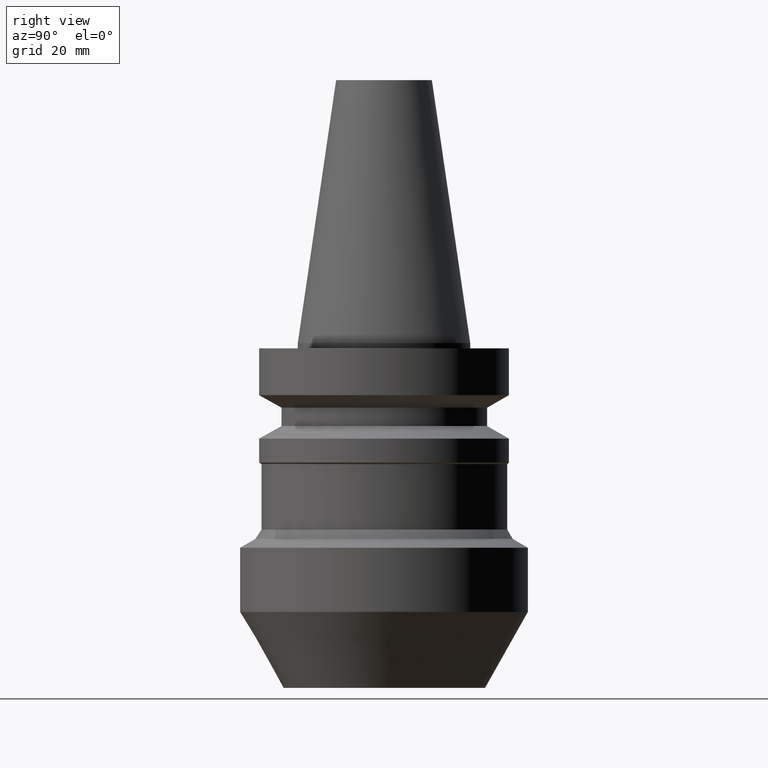
[diagram: clean part render]
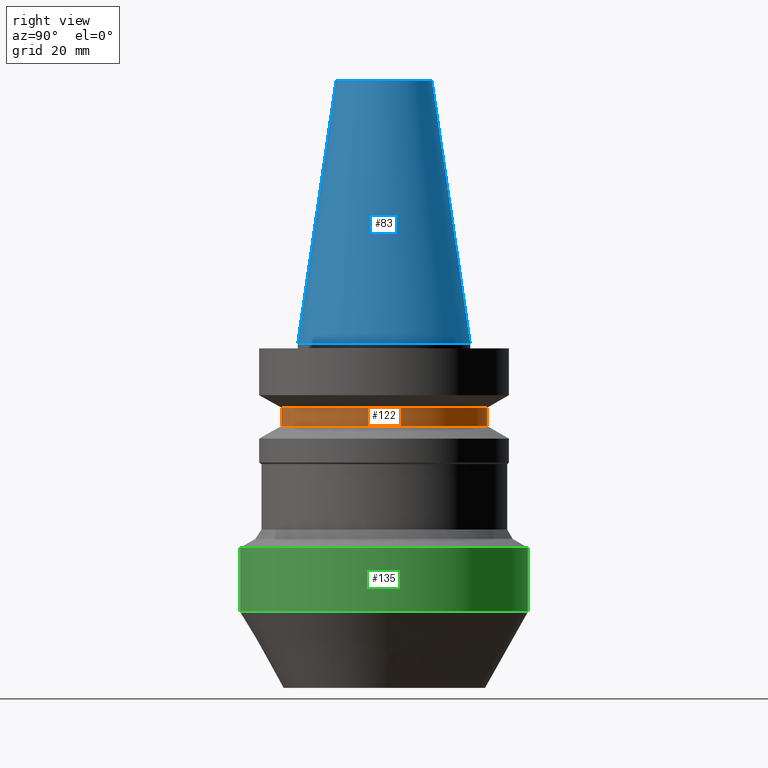
[diagram: same view with three faces highlighted in distinct colors, each labeled with its STEP entity id]
A machine part, right view with three faces highlighted in distinct colors.
Their STEP definitions:

[orange] entity #122 — the highlighted cylindrical surface (bore or boss wall) has radius 19 mm, axis along (0, 0, -1).
#78=EDGE_CURVE('Unnamed[1]',#188,#188,#189,.T.);
#112=EDGE_CURVE('Unnamed[1]',#240,#240,#241,.T.);
#122=ADVANCED_FACE('Unnamed[1]',(#254,#255),#256,.T.);
#188=VERTEX_POINT('',#329);
#189=CIRCLE('',#330,19.0);
#240=VERTEX_POINT('',#394);
#241=CIRCLE('',#395,19.0);
#254=FACE_BOUND('',#412,.T.);
#255=FACE_BOUND('',#413,.T.);
#256=CYLINDRICAL_SURFACE('',#414,19.0);
#329=CARTESIAN_POINT('',(7.29240495619202E-016,19.0,-11.90940108));
#330=AXIS2_PLACEMENT_3D('',#483,#484,#485);
#394=CARTESIAN_POINT('',(9.36279151221199E-016,19.0,-15.29059892));
#395=AXIS2_PLACEMENT_3D('',#538,#539,#540);
#412=EDGE_LOOP('',(#553));
#413=EDGE_LOOP('',(#554));
#414=AXIS2_PLACEMENT_3D('',#555,#556,#557);
#483=CARTESIAN_POINT('',(7.29240495619202E-016,1.4584809912384E-015,-11.90940108));
#484=DIRECTION('',(6.12323399573677E-017,1.22464679914735E-016,-1.0));
#485=DIRECTION('',(-1.23259516440783E-032,1.0,1.22464679914735E-016));
#538=CARTESIAN_POINT('',(9.36279151221199E-016,1.8725583024424E-015,-15.29059892));
#539=DIRECTION('',(6.12323399573677E-017,1.22464679914735E-016,-1.0));
#540=DIRECTION('',(-1.23259516440783E-032,1.0,1.22464679914735E-016));
#553=ORIENTED_EDGE('',*,*,#112,.F.);
#554=ORIENTED_EDGE('',*,*,#78,.T.);
#555=CARTESIAN_POINT('',(8.32759823420201E-016,1.6655196468404E-015,-13.6));
#556=DIRECTION('',(6.12323399573677E-017,1.22464679914735E-016,-1.0));
#557=DIRECTION('',(-1.23259516440783E-032,1.0,1.22464679914735E-016));

[blue] entity #83 — the highlighted conical surface has half-angle 8.297 deg.
#80=EDGE_CURVE('Unnamed[1]',#191,#191,#192,.T.);
#83=ADVANCED_FACE('Unnamed[1]',(#195,#196),#197,.T.);
#114=EDGE_CURVE('Unnamed[1]',#243,#243,#244,.T.);
#191=VERTEX_POINT('',#333);
#192=CIRCLE('',#334,8.81650000198669);
#195=FACE_BOUND('',#338,.T.);
#196=FACE_BOUND('',#339,.T.);
#197=CONICAL_SURFACE('',#340,12.3457500009933,0.144815870013618);
#243=VERTEX_POINT('',#398);
#244=CIRCLE('',#399,15.875);
#333=CARTESIAN_POINT('',(-2.96364525393659E-015,8.81650000198669,48.4));
#334=AXIS2_PLACEMENT_3D('',#486,#487,#488);
#338=EDGE_LOOP('',(#490));
#339=EDGE_LOOP('',(#491));
#340=AXIS2_PLACEMENT_3D('',#492,#493,#494);
#398=CARTESIAN_POINT('',(-1.95674482349743E-031,15.875,1.94412679364642E-015));
#399=AXIS2_PLACEMENT_3D('',#541,#542,#543);
#486=CARTESIAN_POINT('',(-2.96364525393659E-015,-5.92729050787319E-015,48.4));
#487=DIRECTION('',(6.12323399573677E-017,1.22464679914735E-016,-1.0));
#488=DIRECTION('',(-1.23259516440783E-032,1.0,1.22464679914735E-016));
#490=ORIENTED_EDGE('',*,*,#114,.F.);
#491=ORIENTED_EDGE('',*,*,#80,.T.);
#492=CARTESIAN_POINT('',(-1.4818226269683E-015,-2.96364525393659E-015,24.2));
#493=DIRECTION('',(6.12323399573677E-017,1.22464679914735E-016,-1.0));
#494=DIRECTION('',(-1.23259516440783E-032,1.0,1.22464679914735E-016));
#541=CARTESIAN_POINT('',(0.0,0.0,0.0));
#542=DIRECTION('',(6.12323399573677E-017,1.22464679914735E-016,-1.0));
#543=DIRECTION('',(-1.23259516440783E-032,1.0,1.22464679914735E-016));

[green] entity #135 — the highlighted cylindrical surface (bore or boss wall) has radius 26.5 mm, axis along (0, 0, -1).
#104=EDGE_CURVE('Unnamed[1]',#227,#227,#228,.T.);
#124=EDGE_CURVE('Unnamed[1]',#258,#258,#259,.T.);
#135=ADVANCED_FACE('Unnamed[1]',(#275,#276),#277,.T.);
#227=VERTEX_POINT('',#378);
#228=CIRCLE('',#379,26.5);
#258=VERTEX_POINT('',#417);
#259=CIRCLE('',#418,26.5);
#275=FACE_BOUND('',#438,.T.);
#276=FACE_BOUND('',#439,.T.);
#277=CYLINDRICAL_SURFACE('',#440,26.5);
#378=CARTESIAN_POINT('',(2.30808759872502E-015,26.5,-37.6939310229203));
#379=AXIS2_PLACEMENT_3D('',#523,#524,#525);
#417=CARTESIAN_POINT('',(3.03100559411479E-015,26.5,-49.5000778383628));
#418=AXIS2_PLACEMENT_3D('',#558,#559,#560);
#438=EDGE_LOOP('',(#577));
#439=EDGE_LOOP('',(#578));
#440=AXIS2_PLACEMENT_3D('',#579,#580,#581);
#523=CARTESIAN_POINT('',(2.30808759872502E-015,4.61617519745004E-015,-37.6939310229203));
#524=DIRECTION('',(6.12323399573677E-017,1.22464679914735E-016,-1.0));
#525=DIRECTION('',(-1.23259516440783E-032,1.0,1.22464679914735E-016));
#558=CARTESIAN_POINT('',(3.03100559411479E-015,6.06201118822958E-015,-49.5000778383628));
#559=DIRECTION('',(6.12323399573677E-017,1.22464679914735E-016,-1.0));
#560=DIRECTION('',(-1.23259516440783E-032,1.0,1.22464679914735E-016));
#577=ORIENTED_EDGE('',*,*,#124,.F.);
#578=ORIENTED_EDGE('',*,*,#104,.T.);
#579=CARTESIAN_POINT('',(2.66954659641991E-015,5.33909319283981E-015,-43.5970044306415));
#580=DIRECTION('',(6.12323399573677E-017,1.22464679914735E-016,-1.0));
#581=DIRECTION('',(-1.23259516440783E-032,1.0,1.22464679914735E-016));